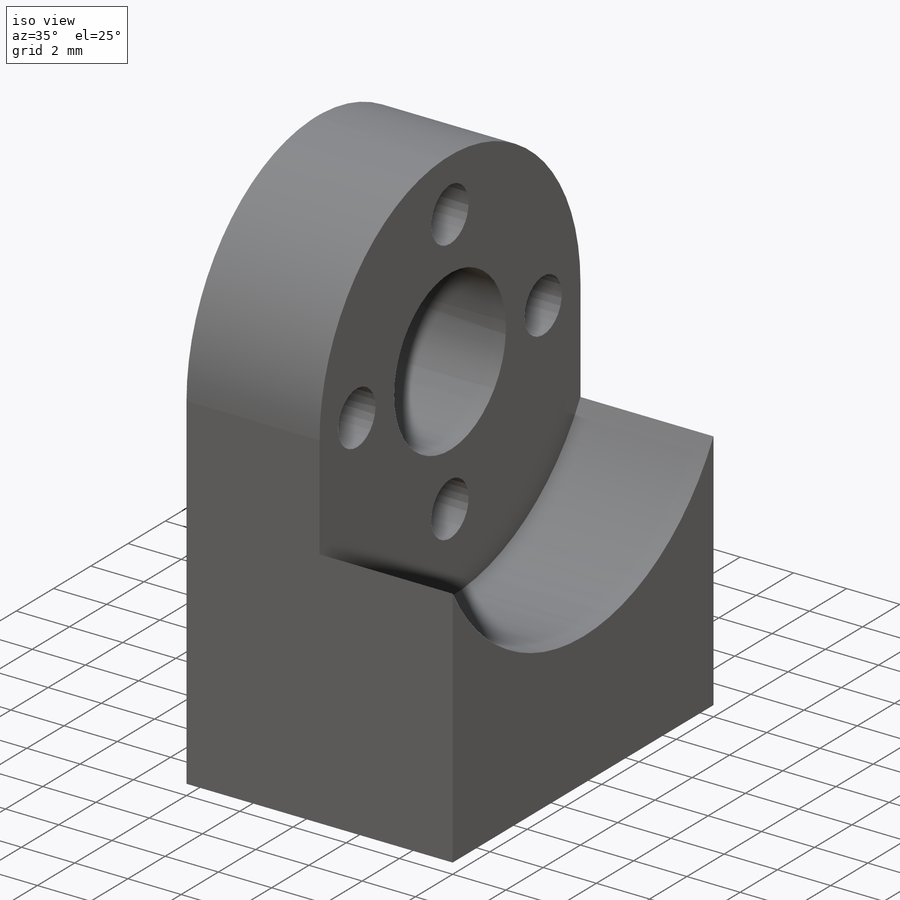
[diagram: iso view]
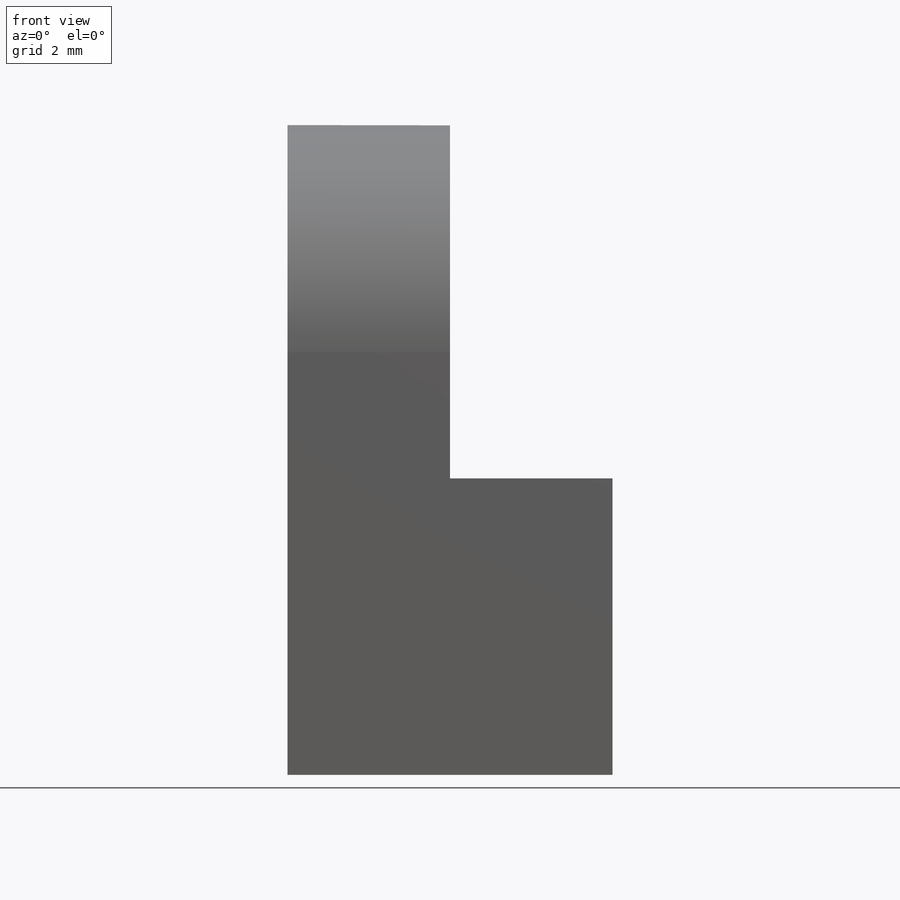
[diagram: front view]
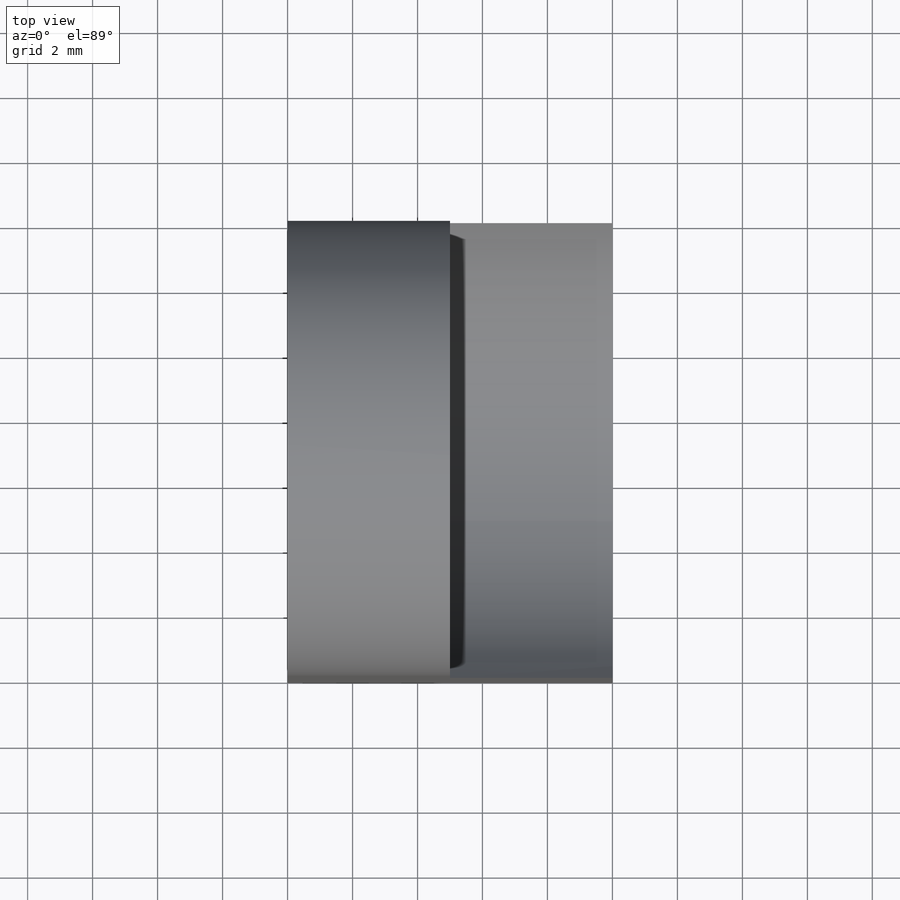
[diagram: top view]
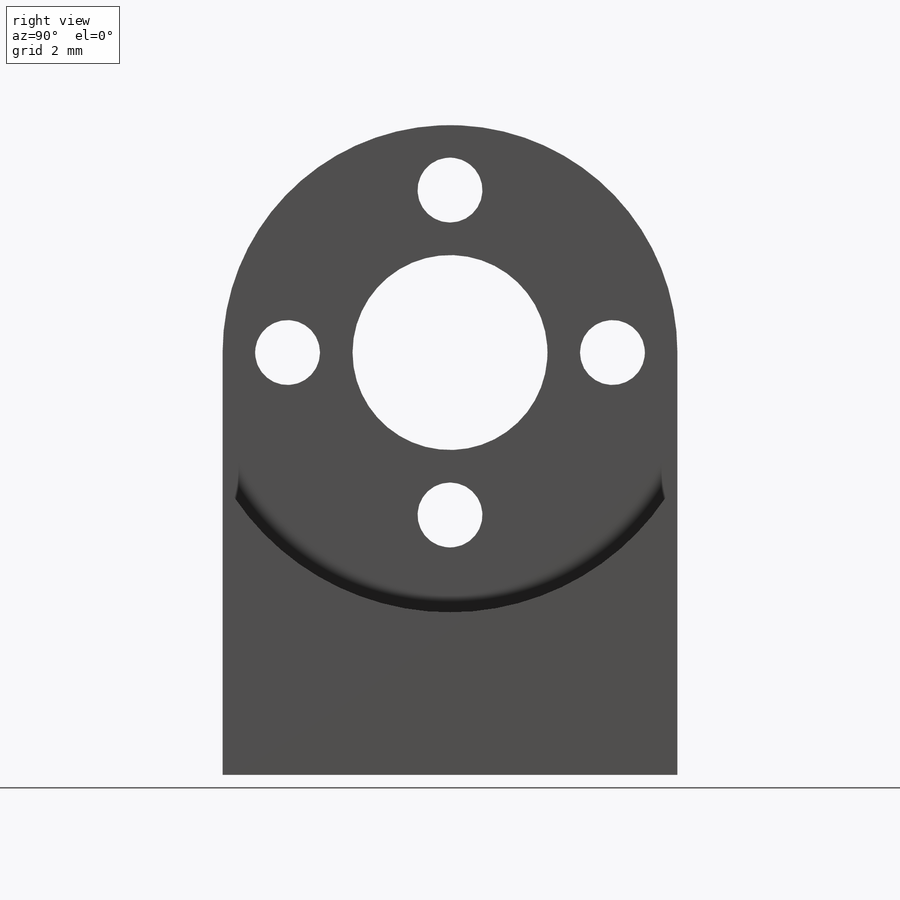
[diagram: right view]
SOLIDWORKS PART (.sldprt)
format: sldprt  version: not decoded by parser v0  size: 237,056 bytes
history: native  units: mm
features: sketch x5, cut_extrude x2, material x1, extrude x1, pattern_circular x1, hole x1, chamfer x1 (+11 scaffold rows collapsed)
feature tree (23):
  scaffold x11  (default folders/planes/origin — collapsed)
  material  "Material <not specified>"
  sketch  "Sketch1"  dims[D2=6.0mm D4=2.0mm D1=14.0mm D3=5.0mm D5=13.0mm]
  extrude  "Boss-Extrude1"  Depth=10mm
  sketch  "Sketch2"  dims[D1=16.0mm]
  cut_extrude  "Cut-Extrude1"  Depth=5mm
  pattern_circular  "CirPattern1"  Count=4 Angle=360deg
  hole  "Tap Drill for M3x0.5 Tap1"  Diameter=2.5mm Depth=4mm
  sketch  "Sketch4"  dims[c1.D1=2.0mm c1.D2=6.0mm c1.D3=3.0mm c1.D4=3.0mm c2.D1=7.0mm c2.D2=3.0mm c2.D5=3.0mm]
  sketch  "Sketch3"  dims[hole-wizard template sketch: 49 standard entries collapsed; hole parameters kept: c15.Drill Angle=118.0deg]
  sketch  "Sketch5"  dims[D1=2.0mm]
  cut_extrude  "Cut-Extrude2"  Depth=4mm
  chamfer  "Chamfer1"  Distance=1mm Angle=45deg
decode coverage: 11 of 11 modeling features carry decoded parameters
note: ~ marks probable driven/reference dimensions
note: suppression state not decoded; provenance and decode notes live in map.json
